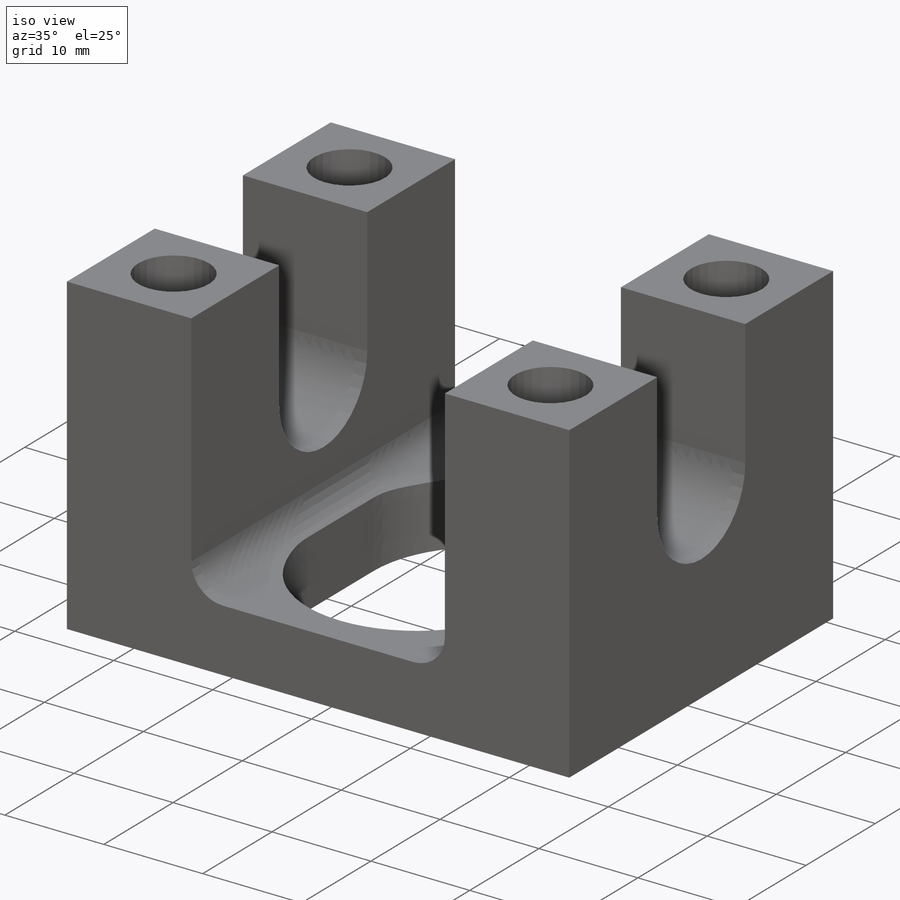
[diagram: iso view]
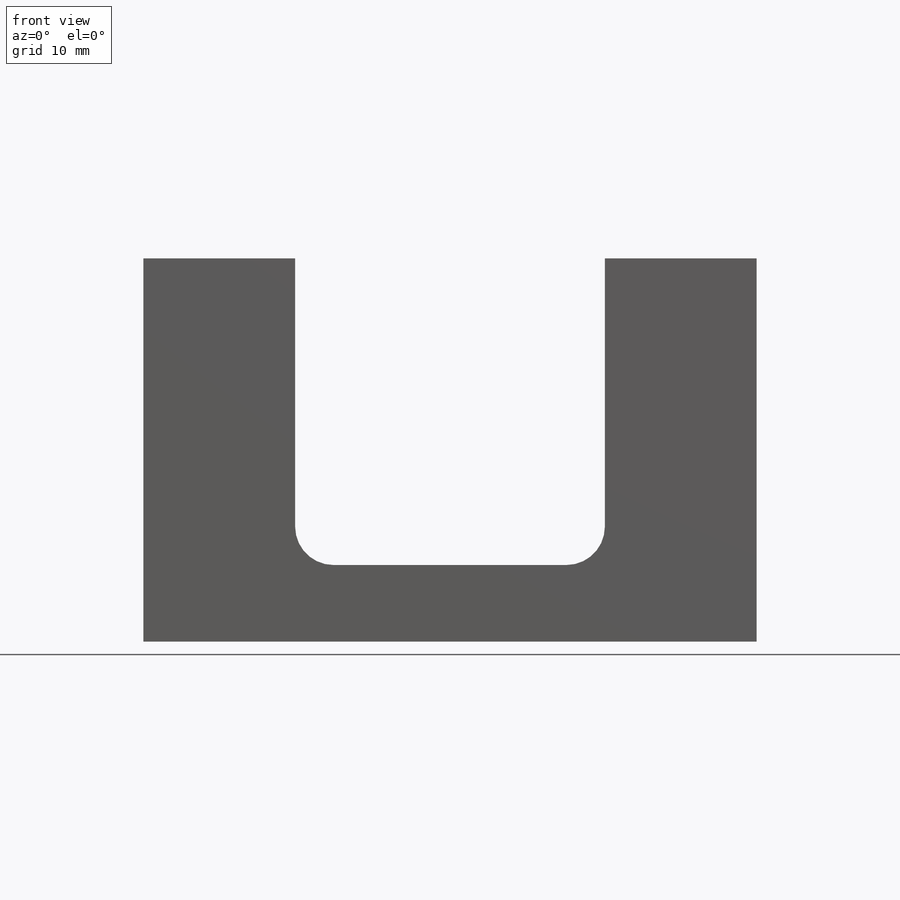
[diagram: front view]
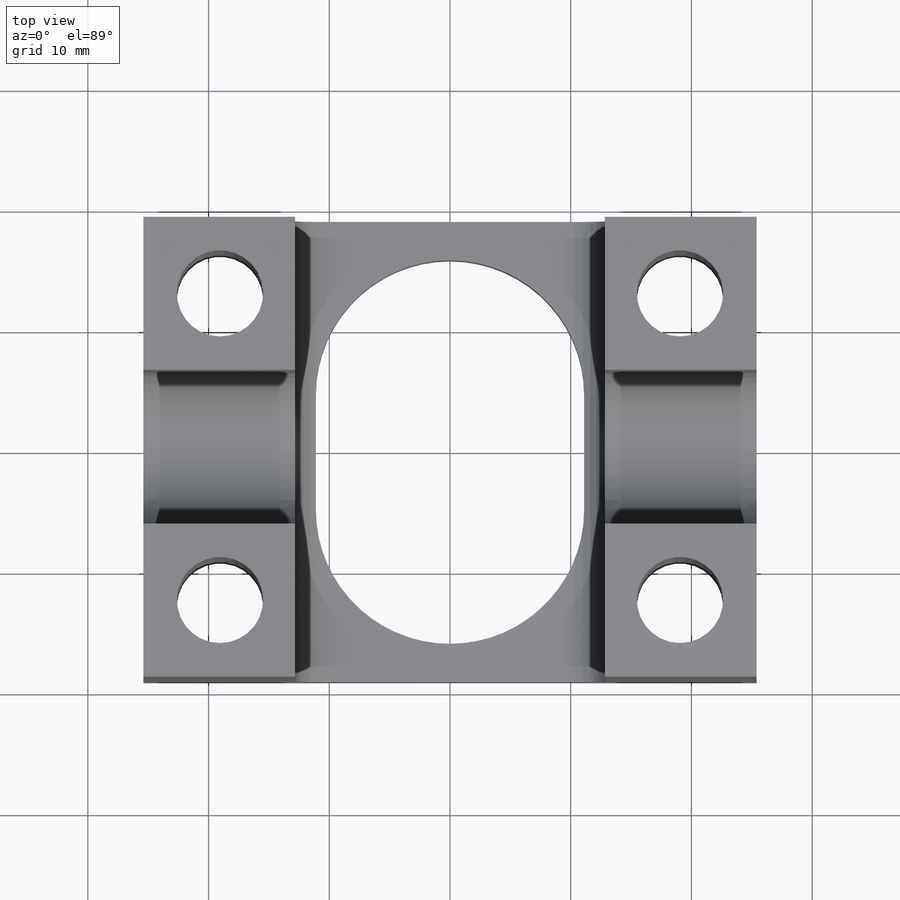
[diagram: top view]
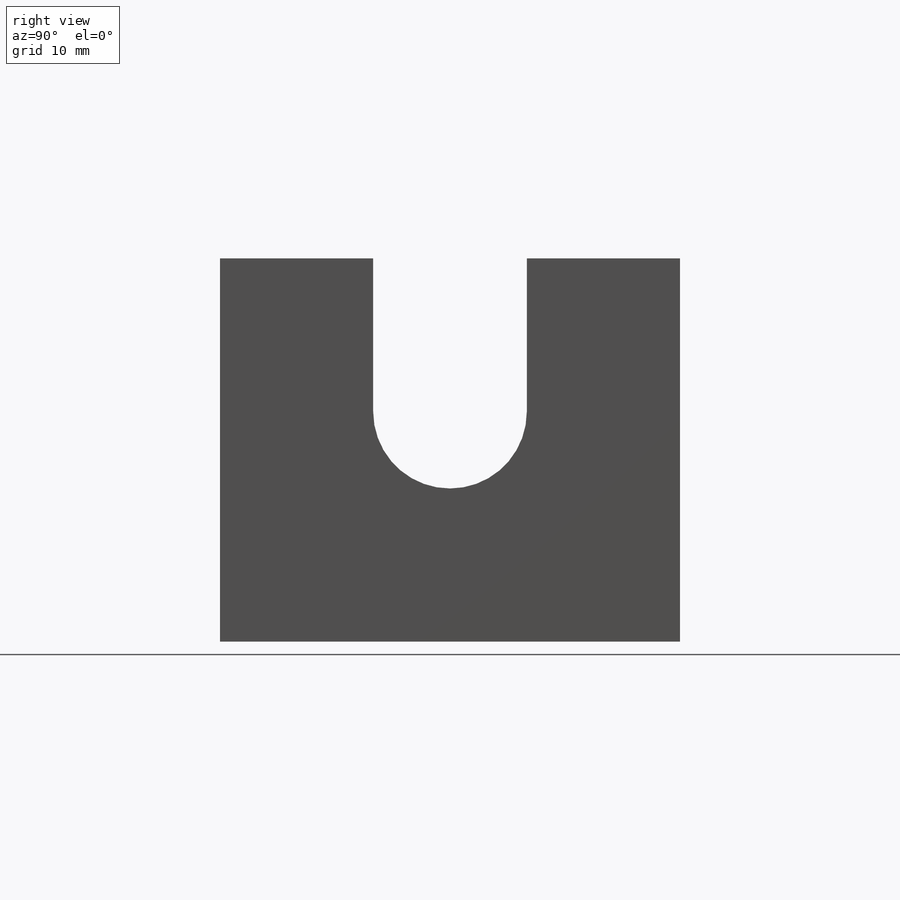
[diagram: right view]
SOLIDWORKS PART (.sldprt)
format: sldprt  version: not decoded by parser v0  size: 506,368 bytes
history: native  units: mm
features: fillet x583, cut_extrude x43, sketch x4, plane x3, material x1, extrude x1 (+11 scaffold rows collapsed)
feature tree (646):
  scaffold x11  (default folders/planes/origin — collapsed)
  material  "NITRONIC 60"
  plane  "XY"
  plane  "XZ"
  plane  "YZ"
  sketch  "Sketch1"  dims[D1=50.8mm D2=31.75mm D3=25.654mm D4=6.35mm]
  extrude  "Extrude1"  Depth=38.1mm
  sketch  "Sketch2"  dims[D1=12.7254mm D2=12.7mm]
  cut_extrude  "Cut-Extrude1"  [1 undecoded]
  fillet  "Fillet1"  Radius=3.175mm
  sketch  "Sketch3"  dims[D1=22.225mm D2=4.7752mm D3=4.7752mm]
  cut_extrude  "Cut-Extrude2"  Depth=2.54mm
  sketch  "Sketch4"  dims[D1=7.1374mm D2=25.4mm D3=38.1mm]
  cut_extrude  "Cut-Extrude3"  Depth=396695460 ID=396695460
  fillet  "ID"  [1 undecoded]
  cut_extrude  "stress:Material-1"  [1 undecoded]
  fillet  "cosMaterialEX"  [1 undecoded]
  fillet  "cosMaterialNUXY"  [1 undecoded]
  fillet  "cosMaterialGXY"  [1 undecoded]
  fillet  "cosMaterialALPX"  [1 undecoded]
  fillet  "cosMaterialDENS"  [1 undecoded]
  fillet  "cosMaterialKX"  [1 undecoded]
  fillet  "cosMaterialC"  [1 undecoded]
  fillet  "Units"  [1 undecoded]
  fillet  "AnalysisType"  [1 undecoded]
  fillet  "MeshType"  [1 undecoded]
  fillet  "cosMaterialSIGYLD"  [1 undecoded]
  fillet  "cosMaterialSIGXT"  [1 undecoded]
  fillet  "cosMaterialSIGXC"  Radius=0mm sMaterialName=0mm cosFMVItemName=0mm cosMaterialName=0mm cosComponentName=0mm
  fillet  "cosMaterialModel"  [1 undecoded]
  fillet  "cosMaterialEY"  [1 undecoded]
  fillet  "cosMaterialEZ"  [1 undecoded]
  fillet  "cosMaterialNUXZ"  [1 undecoded]
  fillet  "cosMaterialNUYZ"  [1 undecoded]
  fillet  "cosMaterialGXZ"  [1 undecoded]
  fillet  "cosMaterialGYZ"  [1 undecoded]
  fillet  "cosMaterialALPY"  [1 undecoded]
  fillet  "cosMaterialALPZ"  [1 undecoded]
  fillet  "cosMaterialKY"  [1 undecoded]
  fillet  "cosMaterialKZ"  Radius=0mm cosMaterialType=0mm cosMaterialLibFile=0mm cosMaterialRefPlaneName=0mm
  fillet  "cosMaterialSource"  Radius=0 cosMaterial7=0
  fillet  "cosMaterialEX"  [1 undecoded]
  fillet  "cosMaterialNUXY"  [1 undecoded]
  fillet  "cosMaterialGXY"  [1 undecoded]
  fillet  "cosMaterialALPX"  [1 undecoded]
  fillet  "cosMaterialDENS"  [1 undecoded]
  fillet  "cosMaterialKX"  [1 undecoded]
  fillet  "cosMaterialC"  [1 undecoded]
  fillet  "Units"  [1 undecoded]
  fillet  "AnalysisType"  [1 undecoded]
  fillet  "MeshType"  [1 undecoded]
  fillet  "cosMaterialSIGYLD"  [1 undecoded]
  fillet  "cosMaterialSIGXT"  [1 undecoded]
  fillet  "cosMaterialSIGXC"  Radius=0mm sMaterialSourceName=0mm sMaterialName=0mm cosFMVItemName=0mm cosMaterialName=0mm cosComponentName=0mm
  fillet  "cosMaterialModel"  [1 undecoded]
  fillet  "cosMaterialEY"  [1 undecoded]
  fillet  "cosMaterialEZ"  [1 undecoded]
  fillet  "cosMaterialNUXZ"  [1 undecoded]
  fillet  "cosMaterialNUYZ"  [1 undecoded]
  fillet  "cosMaterialGXZ"  [1 undecoded]
  fillet  "cosMaterialGYZ"  [1 undecoded]
  fillet  "cosMaterialALPY"  [1 undecoded]
  fillet  "cosMaterialALPZ"  [1 undecoded]
  fillet  "cosMaterialKY"  [1 undecoded]
  fillet  "cosMaterialKZ"  Radius=0mm cosMaterialType=0mm cosMaterialLibFile=0mm cosMaterialRefPlaneName=0mm
  fillet  "cosMaterialSource"  [1 undecoded]
  cut_extrude  "stress:Restraint1-1"  [1 undecoded]
  fillet  "RestraintType"  [1 undecoded]
  fillet  "Value"  [1 undecoded]
  fillet  "cosRestraintComp:1"  [1 undecoded]
  fillet  "cosRestraintComp:2"  [1 undecoded]
  fillet  "cosRestraintComp:3"  [1 undecoded]
  fillet  "cosRestraintComp:4"  [1 undecoded]
  fillet  "cosRestraintComp:5"  [1 undecoded]
  fillet  "cosRestraintComp:6"  [1 undecoded]
  fillet  "Unit"  [1 undecoded]
  fillet  "AnalysisType"  [1 undecoded]
  fillet  "MeshType"  [1 undecoded]
  fillet  "cosRestraintCompCheck1"  [1 undecoded]
  fillet  "cosRestraintCompCheck2"  [1 undecoded]
  fillet  "cosRestraintCompCheck3"  [1 undecoded]
  fillet  "cosRestraintCompCheck4"  [1 undecoded]
  fillet  "cosRestraintCompCheck5"  [1 undecoded]
  fillet  "cosRestraintCompCheck6"  [1 undecoded]
  fillet  "cosRestraintRefPlaneSet"  [1 undecoded]
  fillet  "cosRestraintRefPlaneOrigin1"  [1 undecoded]
  fillet  "cosRestraintRefPlaneOrigin2"  [1 undecoded]
  fillet  "cosRestraintRefPlaneOrigin3"  [1 undecoded]
  fillet  "cosRestraintRefPlaneXDir1"  [1 undecoded]
  fillet  "cosRestraintRefPlaneXDir2"  [1 undecoded]
  fillet  "cosRestraintRefPlaneXDir3"  [1 undecoded]
  fillet  "cosRestraintRefPlaneNormal1"  [1 undecoded]
  fillet  "cosRestraintRefPlaneNormal2"  [1 undecoded]
  fillet  "cosRestraintRefPlaneNormal3"  Radius=0mm cosRestraintRefPlaneName=0mm
  fillet  "cosRestraintCoordSystemType"  [1 undecoded]
  fillet  "cosRestraintFaceTypeMask"  Radius=0mm cosFMVItemName=0mm cosLBCSymbolColor=0mm
  fillet  "cosLBCState"  Radius=0 cosRestraint7=0
  fillet  "RestraintType"  [1 undecoded]
  fillet  "Value"  [1 undecoded]
  fillet  "cosRestraintComp:1"  [1 undecoded]
  fillet  "cosRestraintComp:2"  [1 undecoded]
  fillet  "cosRestraintComp:3"  [1 undecoded]
  fillet  "cosRestraintComp:4"  [1 undecoded]
  fillet  "cosRestraintComp:5"  [1 undecoded]
  fillet  "cosRestraintComp:6"  [1 undecoded]
  fillet  "Unit"  [1 undecoded]
  fillet  "AnalysisType"  [1 undecoded]
  fillet  "MeshType"  [1 undecoded]
  fillet  "cosRestraintCompCheck1"  [1 undecoded]
  fillet  "cosRestraintCompCheck2"  [1 undecoded]
  fillet  "cosRestraintCompCheck3"  [1 undecoded]
  fillet  "cosRestraintCompCheck4"  [1 undecoded]
  fillet  "cosRestraintCompCheck5"  [1 undecoded]
  fillet  "cosRestraintCompCheck6"  [1 undecoded]
  fillet  "cosRestraintRefPlaneSet"  [1 undecoded]
  fillet  "cosRestraintRefPlaneOrigin1"  [1 undecoded]
  fillet  "cosRestraintRefPlaneOrigin2"  [1 undecoded]
  fillet  "cosRestraintRefPlaneOrigin3"  [1 undecoded]
  fillet  "cosRestraintRefPlaneXDir1"  [1 undecoded]
  fillet  "cosRestraintRefPlaneXDir2"  [1 undecoded]
  fillet  "cosRestraintRefPlaneXDir3"  [1 undecoded]
  fillet  "cosRestraintRefPlaneNormal1"  [1 undecoded]
  fillet  "cosRestraintRefPlaneNormal2"  [1 undecoded]
  fillet  "cosRestraintRefPlaneNormal3"  Radius=0mm cosRestraintRefPlaneName=0mm
  fillet  "cosRestraintCoordSystemType"  [1 undecoded]
  fillet  "cosRestraintFaceTypeMask"  Radius=0mm cosFMVItemName=0mm cosLBCSymbolColor=0mm
  fillet  "cosLBCState"  [1 undecoded]
  cut_extrude  "stress:Force1-1"  [1 undecoded]
  fillet  "cosForceComp:1"  [1 undecoded]
  fillet  "cosForceComp:2"  [1 undecoded]
  fillet  "cosForceComp:3"  [1 undecoded]
  fillet  "cosForceComp:4"  [1 undecoded]
  fillet  "cosForceComp:5"  [1 undecoded]
  fillet  "cosForceComp:6"  [1 undecoded]
  fillet  "cosForceTorqueNF"  [1 undecoded]
  fillet  "cosForceCompCheck1"  [1 undecoded]
  fillet  "cosForceCompCheck2"  [1 undecoded]
  fillet  "cosForceCompCheck3"  [1 undecoded]
  fillet  "cosForceCompCheck4"  [1 undecoded]
  fillet  "cosForceCompCheck5"  [1 undecoded]
  fillet  "cosForceCompCheck6"  [1 undecoded]
  fillet  "Unit"  [1 undecoded]
  fillet  "AnalysisType"  [1 undecoded]
  fillet  "MeshType"  [1 undecoded]
  fillet  "cosForceRefPlaneSet"  [1 undecoded]
  fillet  "cosForceRefPlaneOrigin1"  [1 undecoded]
  fillet  "cosForceRefPlaneOrigin2"  [1 undecoded]
  fillet  "cosForceRefPlaneOrigin3"  [1 undecoded]
  fillet  "cosForceRefPlaneXDir1"  [1 undecoded]
  fillet  "cosForceRefPlaneXDir2"  [1 undecoded]
  fillet  "cosForceRefPlaneXDir3"  [1 undecoded]
  fillet  "cosForceRefPlaneNormal1"  [1 undecoded]
  fillet  "cosForceRefPlaneNormal2"  [1 undecoded]
  fillet  "cosForceRefPlaneNormal3"  Radius=0mm cosForceRefPlaneName=0mm
  fillet  "cosForceCoordSystemType"  [1 undecoded]
  fillet  "cosForceType"  Radius=0mm cosFMVItemName=0mm
  fillet  "cosDistributionType"  Radius=0mm cosDistributionCoordSysName=0mm
  fillet  "cosDistributionCoef1"  [1 undecoded]
  fillet  "cosDistributionCoef2"  [1 undecoded]
  fillet  "cosDistributionCoef3"  [1 undecoded]
  fillet  "cosDistributionCoef4"  [1 undecoded]
  fillet  "cosDistributionCoef5"  [1 undecoded]
  fillet  "cosDistributionCoef6"  Radius=0mm cosLBCSymbolColor=0mm
  fillet  "cosLBCState"  Radius=0 cosForce7=0
  fillet  "cosForceComp:1"  [1 undecoded]
  fillet  "cosForceComp:2"  [1 undecoded]
  fillet  "cosForceComp:3"  [1 undecoded]
  fillet  "cosForceComp:4"  [1 undecoded]
  fillet  "cosForceComp:5"  [1 undecoded]
  fillet  "cosForceComp:6"  [1 undecoded]
  fillet  "cosForceTorqueNF"  [1 undecoded]
  fillet  "cosForceCompCheck1"  [1 undecoded]
  fillet  "cosForceCompCheck2"  [1 undecoded]
  fillet  "cosForceCompCheck3"  [1 undecoded]
  fillet  "cosForceCompCheck4"  [1 undecoded]
  fillet  "cosForceCompCheck5"  [1 undecoded]
  fillet  "cosForceCompCheck6"  [1 undecoded]
  fillet  "Unit"  [1 undecoded]
  fillet  "AnalysisType"  [1 undecoded]
  fillet  "MeshType"  [1 undecoded]
  fillet  "cosForceRefPlaneSet"  [1 undecoded]
  fillet  "cosForceRefPlaneOrigin1"  [1 undecoded]
  fillet  "cosForceRefPlaneOrigin2"  [1 undecoded]
  fillet  "cosForceRefPlaneOrigin3"  [1 undecoded]
  fillet  "cosForceRefPlaneXDir1"  [1 undecoded]
  fillet  "cosForceRefPlaneXDir2"  [1 undecoded]
  fillet  "cosForceRefPlaneXDir3"  [1 undecoded]
  fillet  "cosForceRefPlaneNormal1"  [1 undecoded]
  fillet  "cosForceRefPlaneNormal2"  [1 undecoded]
  fillet  "cosForceRefPlaneNormal3"  Radius=0mm cosForceRefPlaneName=0mm
  fillet  "cosForceCoordSystemType"  [1 undecoded]
  fillet  "cosForceType"  Radius=0mm cosFMVItemName=0mm
  fillet  "cosDistributionType"  Radius=0mm cosDistributionCoordSysName=0mm
  fillet  "cosDistributionCoef1"  [1 undecoded]
  fillet  "cosDistributionCoef2"  [1 undecoded]
  fillet  "cosDistributionCoef3"  [1 undecoded]
  fillet  "cosDistributionCoef4"  [1 undecoded]
  fillet  "cosDistributionCoef5"  [1 undecoded]
  fillet  "cosDistributionCoef6"  Radius=0mm cosLBCSymbolColor=0mm
  fillet  "cosLBCState"  [1 undecoded]
  cut_extrude  "stress:Force1-2"  [1 undecoded]
  fillet  "cosForceComp:1"  [1 undecoded]
  fillet  "cosForceComp:2"  [1 undecoded]
  fillet  "cosForceComp:3"  [1 undecoded]
  fillet  "cosForceComp:4"  [1 undecoded]
  fillet  "cosForceComp:5"  [1 undecoded]
  fillet  "cosForceComp:6"  [1 undecoded]
  fillet  "cosForceTorqueNF"  [1 undecoded]
  fillet  "cosForceCompCheck1"  [1 undecoded]
  fillet  "cosForceCompCheck2"  [1 undecoded]
  fillet  "cosForceCompCheck3"  [1 undecoded]
  fillet  "cosForceCompCheck4"  [1 undecoded]
  fillet  "cosForceCompCheck5"  [1 undecoded]
  fillet  "cosForceCompCheck6"  [1 undecoded]
  fillet  "Unit"  [1 undecoded]
  fillet  "AnalysisType"  [1 undecoded]
  fillet  "MeshType"  [1 undecoded]
  fillet  "cosForceRefPlaneSet"  [1 undecoded]
  fillet  "cosForceRefPlaneOrigin1"  [1 undecoded]
  fillet  "cosForceRefPlaneOrigin2"  [1 undecoded]
  fillet  "cosForceRefPlaneOrigin3"  [1 undecoded]
  fillet  "cosForceRefPlaneXDir1"  [1 undecoded]
  fillet  "cosForceRefPlaneXDir2"  [1 undecoded]
  fillet  "cosForceRefPlaneXDir3"  [1 undecoded]
  fillet  "cosForceRefPlaneNormal1"  [1 undecoded]
  fillet  "cosForceRefPlaneNormal2"  [1 undecoded]
  fillet  "cosForceRefPlaneNormal3"  Radius=0mm cosForceRefPlaneName=0mm
  fillet  "cosForceCoordSystemType"  [1 undecoded]
  fillet  "cosForceType"  Radius=0mm cosFMVItemName=0mm
  fillet  "cosDistributionType"  Radius=0mm cosDistributionCoordSysName=0mm
  fillet  "cosDistributionCoef1"  [1 undecoded]
  fillet  "cosDistributionCoef2"  [1 undecoded]
  fillet  "cosDistributionCoef3"  [1 undecoded]
  fillet  "cosDistributionCoef4"  [1 undecoded]
  fillet  "cosDistributionCoef5"  [1 undecoded]
  fillet  "cosDistributionCoef6"  Radius=0mm cosLBCSymbolColor=0mm
  fillet  "cosLBCState"  [1 undecoded]
  cut_extrude  "pusher:Material-1"  [1 undecoded]
  fillet  "cosMaterialEX"  [1 undecoded]
  fillet  "cosMaterialNUXY"  [1 undecoded]
  fillet  "cosMaterialGXY"  [1 undecoded]
  fillet  "cosMaterialALPX"  [1 undecoded]
  fillet  "cosMaterialDENS"  [1 undecoded]
  fillet  "cosMaterialKX"  [1 undecoded]
  fillet  "cosMaterialC"  [1 undecoded]
  fillet  "Units"  [1 undecoded]
  fillet  "AnalysisType"  [1 undecoded]
  fillet  "MeshType"  [1 undecoded]
  fillet  "cosMaterialSIGYLD"  [1 undecoded]
  fillet  "cosMaterialSIGXT"  [1 undecoded]
  fillet  "cosMaterialSIGXC"  Radius=0mm sMaterialSourceName=0mm sMaterialName=0mm cosFMVItemName=0mm cosMaterialName=0mm cosComponentName=0mm
  fillet  "cosMaterialModel"  [1 undecoded]
  fillet  "cosMaterialEY"  [1 undecoded]
  fillet  "cosMaterialEZ"  [1 undecoded]
  fillet  "cosMaterialNUXZ"  [1 undecoded]
  fillet  "cosMaterialNUYZ"  [1 undecoded]
  fillet  "cosMaterialGXZ"  [1 undecoded]
  fillet  "cosMaterialGYZ"  [1 undecoded]
  fillet  "cosMaterialALPY"  [1 undecoded]
  fillet  "cosMaterialALPZ"  [1 undecoded]
  fillet  "cosMaterialKY"  [1 undecoded]
  fillet  "cosMaterialKZ"  Radius=0mm cosMaterialType=0mm cosMaterialLibFile=0mm cosMaterialRefPlaneName=0mm
  fillet  "cosMaterialSource"  [1 undecoded]
  cut_extrude  "pusher:Restraint1-1"  [1 undecoded]
  fillet  "RestraintType"  [1 undecoded]
  fillet  "Value"  [1 undecoded]
  fillet  "cosRestraintComp:1"  [1 undecoded]
  fillet  "cosRestraintComp:2"  [1 undecoded]
  fillet  "cosRestraintComp:3"  [1 undecoded]
  fillet  "cosRestraintComp:4"  [1 undecoded]
  fillet  "cosRestraintComp:5"  [1 undecoded]
  fillet  "cosRestraintComp:6"  [1 undecoded]
  fillet  "Unit"  [1 undecoded]
  fillet  "AnalysisType"  [1 undecoded]
  fillet  "MeshType"  [1 undecoded]
  fillet  "cosRestraintCompCheck1"  [1 undecoded]
  fillet  "cosRestraintCompCheck2"  [1 undecoded]
  fillet  "cosRestraintCompCheck3"  [1 undecoded]
  fillet  "cosRestraintCompCheck4"  [1 undecoded]
  fillet  "cosRestraintCompCheck5"  [1 undecoded]
  fillet  "cosRestraintCompCheck6"  [1 undecoded]
  fillet  "cosRestraintRefPlaneSet"  [1 undecoded]
  fillet  "cosRestraintRefPlaneOrigin1"  [1 undecoded]
  fillet  "cosRestraintRefPlaneOrigin2"  [1 undecoded]
  fillet  "cosRestraintRefPlaneOrigin3"  [1 undecoded]
  fillet  "cosRestraintRefPlaneXDir1"  [1 undecoded]
  fillet  "cosRestraintRefPlaneXDir2"  [1 undecoded]
  fillet  "cosRestraintRefPlaneXDir3"  [1 undecoded]
  fillet  "cosRestraintRefPlaneNormal1"  [1 undecoded]
  fillet  "cosRestraintRefPlaneNormal2"  [1 undecoded]
  fillet  "cosRestraintRefPlaneNormal3"  Radius=0mm cosRestraintRefPlaneName=0mm
  fillet  "cosRestraintCoordSystemType"  [1 undecoded]
  fillet  "cosRestraintFaceTypeMask"  Radius=0mm cosFMVItemName=0mm cosLBCSymbolColor=0mm
  fillet  "cosLBCState"  [1 undecoded]
  cut_extrude  "pusher:Restraint1-2"  [1 undecoded]
  fillet  "RestraintType"  [1 undecoded]
  fillet  "Value"  [1 undecoded]
  fillet  "cosRestraintComp:1"  [1 undecoded]
  fillet  "cosRestraintComp:2"  [1 undecoded]
  fillet  "cosRestraintComp:3"  [1 undecoded]
  fillet  "cosRestraintComp:4"  [1 undecoded]
  fillet  "cosRestraintComp:5"  [1 undecoded]
  fillet  "cosRestraintComp:6"  [1 undecoded]
  fillet  "Unit"  [1 undecoded]
  fillet  "AnalysisType"  [1 undecoded]
  fillet  "MeshType"  [1 undecoded]
  fillet  "cosRestraintCompCheck1"  [1 undecoded]
  fillet  "cosRestraintCompCheck2"  [1 undecoded]
  fillet  "cosRestraintCompCheck3"  [1 undecoded]
  fillet  "cosRestraintCompCheck4"  [1 undecoded]
  fillet  "cosRestraintCompCheck5"  [1 undecoded]
  fillet  "cosRestraintCompCheck6"  [1 undecoded]
  fillet  "cosRestraintRefPlaneSet"  [1 undecoded]
  fillet  "cosRestraintRefPlaneOrigin1"  [1 undecoded]
  fillet  "cosRestraintRefPlaneOrigin2"  [1 undecoded]
  fillet  "cosRestraintRefPlaneOrigin3"  [1 undecoded]
  fillet  "cosRestraintRefPlaneXDir1"  [1 undecoded]
  fillet  "cosRestraintRefPlaneXDir2"  [1 undecoded]
  fillet  "cosRestraintRefPlaneXDir3"  [1 undecoded]
  fillet  "cosRestraintRefPlaneNormal1"  [1 undecoded]
  fillet  "cosRestraintRefPlaneNormal2"  [1 undecoded]
  fillet  "cosRestraintRefPlaneNormal3"  Radius=0mm cosRestraintRefPlaneName=0mm
  fillet  "cosRestraintCoordSystemType"  [1 undecoded]
  fillet  "cosRestraintFaceTypeMask"  Radius=0mm cosFMVItemName=0mm cosLBCSymbolColor=0mm
  fillet  "cosLBCState"  [1 undecoded]
  cut_extrude  "pusher:Restraint1-3"  [1 undecoded]
  fillet  "RestraintType"  [1 undecoded]
  fillet  "Value"  [1 undecoded]
  fillet  "cosRestraintComp:1"  [1 undecoded]
  fillet  "cosRestraintComp:2"  [1 undecoded]
  fillet  "cosRestraintComp:3"  [1 undecoded]
  fillet  "cosRestraintComp:4"  [1 undecoded]
  fillet  "cosRestraintComp:5"  [1 undecoded]
  fillet  "cosRestraintComp:6"  [1 undecoded]
  fillet  "Unit"  [1 undecoded]
  fillet  "AnalysisType"  [1 undecoded]
  fillet  "MeshType"  [1 undecoded]
  fillet  "cosRestraintCompCheck1"  [1 undecoded]
  fillet  "cosRestraintCompCheck2"  [1 undecoded]
  fillet  "cosRestraintCompCheck3"  [1 undecoded]
  fillet  "cosRestraintCompCheck4"  [1 undecoded]
  fillet  "cosRestraintCompCheck5"  [1 undecoded]
  fillet  "cosRestraintCompCheck6"  [1 undecoded]
  fillet  "cosRestraintRefPlaneSet"  [1 undecoded]
  fillet  "cosRestraintRefPlaneOrigin1"  [1 undecoded]
  fillet  "cosRestraintRefPlaneOrigin2"  [1 undecoded]
  fillet  "cosRestraintRefPlaneOrigin3"  [1 undecoded]
  fillet  "cosRestraintRefPlaneXDir1"  [1 undecoded]
  fillet  "cosRestraintRefPlaneXDir2"  [1 undecoded]
  fillet  "cosRestraintRefPlaneXDir3"  [1 undecoded]
  fillet  "cosRestraintRefPlaneNormal1"  [1 undecoded]
  fillet  "cosRestraintRefPlaneNormal2"  [1 undecoded]
  fillet  "cosRestraintRefPlaneNormal3"  Radius=0mm cosRestraintRefPlaneName=0mm
  fillet  "cosRestraintCoordSystemType"  [1 undecoded]
  fillet  "cosRestraintFaceTypeMask"  Radius=0mm cosFMVItemName=0mm cosLBCSymbolColor=0mm
  fillet  "cosLBCState"  [1 undecoded]
  cut_extrude  "pusher:Restraint1-4"  [1 undecoded]
  fillet  "RestraintType"  [1 undecoded]
  fillet  "Value"  [1 undecoded]
  fillet  "cosRestraintComp:1"  [1 undecoded]
  fillet  "cosRestraintComp:2"  [1 undecoded]
  fillet  "cosRestraintComp:3"  [1 undecoded]
  fillet  "cosRestraintComp:4"  [1 undecoded]
  fillet  "cosRestraintComp:5"  [1 undecoded]
  fillet  "cosRestraintComp:6"  [1 undecoded]
  fillet  "Unit"  [1 undecoded]
  fillet  "AnalysisType"  [1 undecoded]
  fillet  "MeshType"  [1 undecoded]
  fillet  "cosRestraintCompCheck1"  [1 undecoded]
  fillet  "cosRestraintCompCheck2"  [1 undecoded]
  fillet  "cosRestraintCompCheck3"  [1 undecoded]
  fillet  "cosRestraintCompCheck4"  [1 undecoded]
  fillet  "cosRestraintCompCheck5"  [1 undecoded]
  fillet  "cosRestraintCompCheck6"  [1 undecoded]
  fillet  "cosRestraintRefPlaneSet"  [1 undecoded]
  fillet  "cosRestraintRefPlaneOrigin1"  [1 undecoded]
  fillet  "cosRestraintRefPlaneOrigin2"  [1 undecoded]
  fillet  "cosRestraintRefPlaneOrigin3"  [1 undecoded]
  fillet  "cosRestraintRefPlaneXDir1"  [1 undecoded]
  fillet  "cosRestraintRefPlaneXDir2"  [1 undecoded]
  fillet  "cosRestraintRefPlaneXDir3"  [1 undecoded]
  fillet  "cosRestraintRefPlaneNormal1"  [1 undecoded]
  fillet  "cosRestraintRefPlaneNormal2"  [1 undecoded]
  fillet  "cosRestraintRefPlaneNormal3"  Radius=0mm cosRestraintRefPlaneName=0mm
  fillet  "cosRestraintCoordSystemType"  [1 undecoded]
  fillet  "cosRestraintFaceTypeMask"  Radius=0mm cosFMVItemName=0mm cosLBCSymbolColor=0mm
  fillet  "cosLBCState"  [1 undecoded]
  cut_extrude  "pusher:Force1-1"  [1 undecoded]
  fillet  "cosForceComp:1"  [1 undecoded]
  fillet  "cosForceComp:2"  [1 undecoded]
  fillet  "cosForceComp:3"  [1 undecoded]
  fillet  "cosForceComp:4"  [1 undecoded]
  fillet  "cosForceComp:5"  [1 undecoded]
  fillet  "cosForceComp:6"  [1 undecoded]
  fillet  "cosForceTorqueNF"  [1 undecoded]
  fillet  "cosForceCompCheck1"  [1 undecoded]
  fillet  "cosForceCompCheck2"  [1 undecoded]
  fillet  "cosForceCompCheck3"  [1 undecoded]
  fillet  "cosForceCompCheck4"  [1 undecoded]
  fillet  "cosForceCompCheck5"  [1 undecoded]
  fillet  "cosForceCompCheck6"  [1 undecoded]
  fillet  "Unit"  [1 undecoded]
  fillet  "AnalysisType"  [1 undecoded]
  fillet  "MeshType"  [1 undecoded]
  fillet  "cosForceRefPlaneSet"  [1 undecoded]
  fillet  "cosForceRefPlaneOrigin1"  [1 undecoded]
  fillet  "cosForceRefPlaneOrigin2"  [1 undecoded]
  fillet  "cosForceRefPlaneOrigin3"  [1 undecoded]
  fillet  "cosForceRefPlaneXDir1"  [1 undecoded]
  fillet  "cosForceRefPlaneXDir2"  [1 undecoded]
  fillet  "cosForceRefPlaneXDir3"  [1 undecoded]
  fillet  "cosForceRefPlaneNormal1"  [1 undecoded]
  fillet  "cosForceRefPlaneNormal2"  [1 undecoded]
  fillet  "cosForceRefPlaneNormal3"  Radius=0mm cosForceRefPlaneName=0mm
  fillet  "cosForceCoordSystemType"  [1 undecoded]
  fillet  "cosForceType"  Radius=0mm cosFMVItemName=0mm
  fillet  "cosDistributionType"  Radius=0mm cosDistributionCoordSysName=0mm
  fillet  "cosDistributionCoef1"  [1 undecoded]
  fillet  "cosDistributionCoef2"  [1 undecoded]
  fillet  "cosDistributionCoef3"  [1 undecoded]
  fillet  "cosDistributionCoef4"  [1 undecoded]
  fillet  "cosDistributionCoef5"  [1 undecoded]
  fillet  "cosDistributionCoef6"  Radius=0mm cosLBCSymbolColor=0mm
  fillet  "cosLBCState"  [1 undecoded]
  cut_extrude  "pusher:Force1-2"  [1 undecoded]
  fillet  "cosForceComp:1"  [1 undecoded]
  fillet  "cosForceComp:2"  [1 undecoded]
  fillet  "cosForceComp:3"  [1 undecoded]
  fillet  "cosForceComp:4"  [1 undecoded]
  fillet  "cosForceComp:5"  [1 undecoded]
  fillet  "cosForceComp:6"  [1 undecoded]
  fillet  "cosForceTorqueNF"  [1 undecoded]
  fillet  "cosForceCompCheck1"  [1 undecoded]
  fillet  "cosForceCompCheck2"  [1 undecoded]
  fillet  "cosForceCompCheck3"  [1 undecoded]
  fillet  "cosForceCompCheck4"  [1 undecoded]
  fillet  "cosForceCompCheck5"  [1 undecoded]
  fillet  "cosForceCompCheck6"  [1 undecoded]
  fillet  "Unit"  [1 undecoded]
  fillet  "AnalysisType"  [1 undecoded]
  fillet  "MeshType"  [1 undecoded]
  fillet  "cosForceRefPlaneSet"  [1 undecoded]
  fillet  "cosForceRefPlaneOrigin1"  [1 undecoded]
  fillet  "cosForceRefPlaneOrigin2"  [1 undecoded]
  fillet  "cosForceRefPlaneOrigin3"  [1 undecoded]
  fillet  "cosForceRefPlaneXDir1"  [1 undecoded]
  fillet  "cosForceRefPlaneXDir2"  [1 undecoded]
  fillet  "cosForceRefPlaneXDir3"  [1 undecoded]
  fillet  "cosForceRefPlaneNormal1"  [1 undecoded]
  fillet  "cosForceRefPlaneNormal2"  [1 undecoded]
  fillet  "cosForceRefPlaneNormal3"  Radius=0mm cosForceRefPlaneName=0mm
  fillet  "cosForceCoordSystemType"  [1 undecoded]
  fillet  "cosForceType"  Radius=0mm cosFMVItemName=0mm
  fillet  "cosDistributionType"  Radius=0mm cosDistributionCoordSysName=0mm
  fillet  "cosDistributionCoef1"  [1 undecoded]
  fillet  "cosDistributionCoef2"  [1 undecoded]
  fillet  "cosDistributionCoef3"  [1 undecoded]
  fillet  "cosDistributionCoef4"  [1 undecoded]
  fillet  "cosDistributionCoef5"  [1 undecoded]
  fillet  "cosDistributionCoef6"  Radius=0mm cosLBCSymbolColor=0mm
  fillet  "cosLBCState"  [1 undecoded]
  cut_extrude  "FaceID-1"  [1 undecoded]
  fillet  "faceID"  Radius=0 cosFaceID=0
  fillet  "faceID"  [1 undecoded]
  cut_extrude  "FaceID-2"  [1 undecoded]
  fillet  "faceID"  [1 undecoded]
  cut_extrude  "FaceID-3"  [1 undecoded]
  fillet  "faceID"  [1 undecoded]
  cut_extrude  "FaceID-4"  [1 undecoded]
  fillet  "faceID"  [1 undecoded]
  cut_extrude  "FaceID-5"  [1 undecoded]
  fillet  "faceID"  [1 undecoded]
  cut_extrude  "FaceID-6"  [1 undecoded]
  fillet  "faceID"  [1 undecoded]
  cut_extrude  "FaceID-7"  [1 undecoded]
  fillet  "faceID"  [1 undecoded]
  cut_extrude  "FaceID-8"  [1 undecoded]
  fillet  "faceID"  [1 undecoded]
  cut_extrude  "FaceID-9"  [1 undecoded]
  fillet  "faceID"  [1 undecoded]
  cut_extrude  "FaceID-10"  [1 undecoded]
  fillet  "faceID"  [1 undecoded]
  cut_extrude  "FaceID-11"  [1 undecoded]
  fillet  "faceID"  [1 undecoded]
  cut_extrude  "FaceID-12"  [1 undecoded]
  fillet  "faceID"  [1 undecoded]
  cut_extrude  "FaceID-13"  [1 undecoded]
  fillet  "faceID"  [1 undecoded]
  cut_extrude  "FaceID-14"  [1 undecoded]
  fillet  "faceID"  [1 undecoded]
  cut_extrude  "FaceID-15"  [1 undecoded]
  fillet  "faceID"  [1 undecoded]
  cut_extrude  "FaceID-16"  [1 undecoded]
  fillet  "faceID"  [1 undecoded]
  cut_extrude  "FaceID-17"  [1 undecoded]
  fillet  "faceID"  [1 undecoded]
  cut_extrude  "FaceID-18"  [1 undecoded]
  fillet  "faceID"  [1 undecoded]
  cut_extrude  "FaceID-19"  [1 undecoded]
  fillet  "faceID"  [1 undecoded]
  cut_extrude  "FaceID-20"  [1 undecoded]
  fillet  "faceID"  [1 undecoded]
  cut_extrude  "FaceID-21"  [1 undecoded]
  fillet  "faceID"  [1 undecoded]
  cut_extrude  "FaceID-22"  [1 undecoded]
  fillet  "faceID"  [1 undecoded]
  cut_extrude  "FaceID-23"  [1 undecoded]
  fillet  "faceID"  [1 undecoded]
  cut_extrude  "FaceID-24"  [1 undecoded]
  fillet  "faceID"  [1 undecoded]
  cut_extrude  "FaceID-25"  [1 undecoded]
  fillet  "faceID"  [1 undecoded]
  cut_extrude  "pusher:Restraint2-1"  [1 undecoded]
  fillet  "RestraintType"  [1 undecoded]
  fillet  "Value"  [1 undecoded]
  fillet  "cosRestraintComp:1"  [1 undecoded]
  fillet  "cosRestraintComp:2"  [1 undecoded]
  fillet  "cosRestraintComp:3"  [1 undecoded]
  fillet  "cosRestraintComp:4"  [1 undecoded]
  fillet  "cosRestraintComp:5"  [1 undecoded]
  fillet  "cosRestraintComp:6"  [1 undecoded]
  fillet  "Unit"  [1 undecoded]
  fillet  "AnalysisType"  [1 undecoded]
  fillet  "MeshType"  [1 undecoded]
  fillet  "cosRestraintCompCheck1"  [1 undecoded]
  fillet  "cosRestraintCompCheck2"  [1 undecoded]
  fillet  "cosRestraintCompCheck3"  [1 undecoded]
  fillet  "cosRestraintCompCheck4"  [1 undecoded]
  fillet  "cosRestraintCompCheck5"  [1 undecoded]
  fillet  "cosRestraintCompCheck6"  [1 undecoded]
  fillet  "cosRestraintRefPlaneSet"  [1 undecoded]
  fillet  "cosRestraintRefPlaneOrigin1"  [1 undecoded]
  fillet  "cosRestraintRefPlaneOrigin2"  [1 undecoded]
  fillet  "cosRestraintRefPlaneOrigin3"  [1 undecoded]
  fillet  "cosRestraintRefPlaneXDir1"  [1 undecoded]
  fillet  "cosRestraintRefPlaneXDir2"  [1 undecoded]
  fillet  "cosRestraintRefPlaneXDir3"  [1 undecoded]
  fillet  "cosRestraintRefPlaneNormal1"  [1 undecoded]
  fillet  "cosRestraintRefPlaneNormal2"  [1 undecoded]
  fillet  "cosRestraintRefPlaneNormal3"  Radius=0mm cosRestraintRefPlaneName=0mm
  fillet  "cosRestraintCoordSystemType"  [1 undecoded]
  fillet  "cosRestraintFaceTypeMask"  Radius=0mm cosFMVItemName=0mm cosLBCSymbolColor=0mm
  fillet  "cosLBCState"  [1 undecoded]
  cut_extrude  "pusher:Restraint3-1"  [1 undecoded]
  fillet  "RestraintType"  [1 undecoded]
  fillet  "Value"  [1 undecoded]
  fillet  "cosRestraintComp:1"  [1 undecoded]
  fillet  "cosRestraintComp:2"  [1 undecoded]
  fillet  "cosRestraintComp:3"  [1 undecoded]
  fillet  "cosRestraintComp:4"  [1 undecoded]
  fillet  "cosRestraintComp:5"  [1 undecoded]
  fillet  "cosRestraintComp:6"  [1 undecoded]
  fillet  "Unit"  [1 undecoded]
  fillet  "AnalysisType"  [1 undecoded]
  fillet  "MeshType"  [1 undecoded]
  fillet  "cosRestraintCompCheck1"  [1 undecoded]
  fillet  "cosRestraintCompCheck2"  [1 undecoded]
  fillet  "cosRestraintCompCheck3"  [1 undecoded]
  fillet  "cosRestraintCompCheck4"  [1 undecoded]
  fillet  "cosRestraintCompCheck5"  [1 undecoded]
  fillet  "cosRestraintCompCheck6"  [1 undecoded]
  fillet  "cosRestraintRefPlaneSet"  [1 undecoded]
  fillet  "cosRestraintRefPlaneOrigin1"  [1 undecoded]
  fillet  "cosRestraintRefPlaneOrigin2"  [1 undecoded]
  fillet  "cosRestraintRefPlaneOrigin3"  [1 undecoded]
  fillet  "cosRestraintRefPlaneXDir1"  [1 undecoded]
  fillet  "cosRestraintRefPlaneXDir2"  [1 undecoded]
  fillet  "cosRestraintRefPlaneXDir3"  [1 undecoded]
  fillet  "cosRestraintRefPlaneNormal1"  [1 undecoded]
  fillet  "cosRestraintRefPlaneNormal2"  [1 undecoded]
  fillet  "cosRestraintRefPlaneNormal3"  Radius=0mm cosRestraintRefPlaneName=0mm
  fillet  "cosRestraintCoordSystemType"  [1 undecoded]
  fillet  "cosRestraintFaceTypeMask"  Radius=0mm cosFMVItemName=0mm cosLBCSymbolColor=0mm
  fillet  "cosLBCState"  [1 undecoded]
  cut_extrude  "pusher:Restraint4-1"  [1 undecoded]
  fillet  "RestraintType"  [1 undecoded]
  fillet  "Value"  [1 undecoded]
  fillet  "cosRestraintComp:1"  [1 undecoded]
  fillet  "cosRestraintComp:2"  [1 undecoded]
  fillet  "cosRestraintComp:3"  [1 undecoded]
  fillet  "cosRestraintComp:4"  [1 undecoded]
  fillet  "cosRestraintComp:5"  [1 undecoded]
  fillet  "cosRestraintComp:6"  [1 undecoded]
  fillet  "Unit"  [1 undecoded]
  fillet  "AnalysisType"  [1 undecoded]
  fillet  "MeshType"  [1 undecoded]
  fillet  "cosRestraintCompCheck1"  [1 undecoded]
  fillet  "cosRestraintCompCheck2"  [1 undecoded]
  fillet  "cosRestraintCompCheck3"  [1 undecoded]
  fillet  "cosRestraintCompCheck4"  [1 undecoded]
  fillet  "cosRestraintCompCheck5"  [1 undecoded]
  fillet  "cosRestraintCompCheck6"  [1 undecoded]
  fillet  "cosRestraintRefPlaneSet"  [1 undecoded]
  fillet  "cosRestraintRefPlaneOrigin1"  [1 undecoded]
  fillet  "cosRestraintRefPlaneOrigin2"  [1 undecoded]
  fillet  "cosRestraintRefPlaneOrigin3"  [1 undecoded]
  fillet  "cosRestraintRefPlaneXDir1"  [1 undecoded]
  fillet  "cosRestraintRefPlaneXDir2"  [1 undecoded]
  fillet  "cosRestraintRefPlaneXDir3"  [1 undecoded]
  fillet  "cosRestraintRefPlaneNormal1"  [1 undecoded]
  fillet  "cosRestraintRefPlaneNormal2"  [1 undecoded]
  fillet  "cosRestraintRefPlaneNormal3"  Radius=0mm cosRestraintRefPlaneName=0mm
  fillet  "cosRestraintCoordSystemType"  [1 undecoded]
  fillet  "cosRestraintFaceTypeMask"  Radius=0mm cosFMVItemName=0mm cosLBCSymbolColor=0mm
  fillet  "cosLBCState"  [1 undecoded]
  cut_extrude  "pusher:Restraint5-1"  [1 undecoded]
  fillet  "RestraintType"  [1 undecoded]
  fillet  "Value"  [1 undecoded]
  fillet  "cosRestraintComp:1"  [1 undecoded]
  fillet  "cosRestraintComp:2"  [1 undecoded]
  fillet  "cosRestraintComp:3"  [1 undecoded]
  fillet  "cosRestraintComp:4"  [1 undecoded]
  fillet  "cosRestraintComp:5"  [1 undecoded]
  fillet  "cosRestraintComp:6"  [1 undecoded]
  fillet  "Unit"  [1 undecoded]
  fillet  "AnalysisType"  [1 undecoded]
  fillet  "MeshType"  [1 undecoded]
  fillet  "cosRestraintCompCheck1"  [1 undecoded]
  fillet  "cosRestraintCompCheck2"  [1 undecoded]
  fillet  "cosRestraintCompCheck3"  [1 undecoded]
  fillet  "cosRestraintCompCheck4"  [1 undecoded]
  fillet  "cosRestraintCompCheck5"  [1 undecoded]
  fillet  "cosRestraintCompCheck6"  [1 undecoded]
  fillet  "cosRestraintRefPlaneSet"  [1 undecoded]
  fillet  "cosRestraintRefPlaneOrigin1"  [1 undecoded]
  fillet  "cosRestraintRefPlaneOrigin2"  [1 undecoded]
  fillet  "cosRestraintRefPlaneOrigin3"  [1 undecoded]
  fillet  "cosRestraintRefPlaneXDir1"  [1 undecoded]
  fillet  "cosRestraintRefPlaneXDir2"  [1 undecoded]
  fillet  "cosRestraintRefPlaneXDir3"  [1 undecoded]
  fillet  "cosRestraintRefPlaneNormal1"  [1 undecoded]
  fillet  "cosRestraintRefPlaneNormal2"  [1 undecoded]
  fillet  "cosRestraintRefPlaneNormal3"  Radius=0mm cosRestraintRefPlaneName=0mm
  fillet  "cosRestraintCoordSystemType"  [1 undecoded]
  fillet  "cosRestraintFaceTypeMask"  Radius=0mm cosFMVItemName=0mm cosLBCSymbolColor=0mm
  fillet  "cosLBCState"  [1 undecoded]
decode coverage: 58 of 631 modeling features carry decoded parameters
note: 573 parameter values undecoded
summary: no parameter record found for 573 features
note: suppression state not decoded; provenance and decode notes live in map.json
